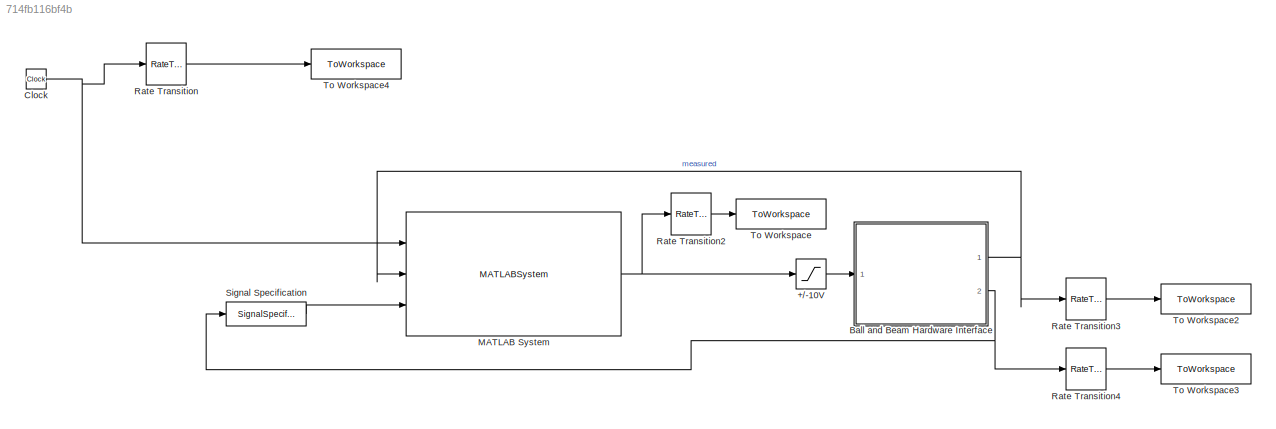
MODEL slx_714fb116bf4b
KIND model
CONFIG AbsTol = 1e-6
CONFIG EnableMultiTasking = on
CONFIG FixedStep = 0.002
CONFIG MaxStep = auto
CONFIG MinStep = auto
CONFIG RelTol = 1e-3
CONFIG SampleTimeConstraint = Unconstrained
CONFIG Solver = ode4
CONFIG SolverName = ode4
CONFIG StartTime = 0
CONFIG StopTime = 90
BLOCK [Saturate] +//-10V
  InputPortMap = u0
  LowerLimit = -10
  Ports = [1, 1]
  UpperLimit = 10
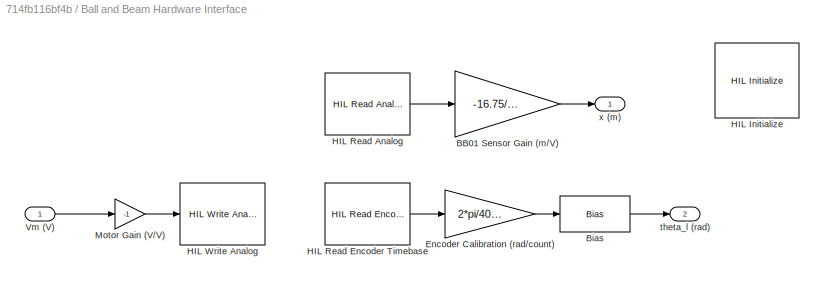
BLOCK [SubSystem] Ball and Beam Hardware Interface
  Ports = [1, 2]
  RequestExecContextInheritance = off
  Variant = off
BLOCK [Gain] Ball and Beam Hardware Interface/BB01 Sensor Gain (m//V)
  Gain = -16.75/10*0.0254
  OutDataTypeStr = Inherit: Inherit via internal rule
  ParamDataTypeStr = Inherit: Inherit via internal rule
  SaturateOnIntegerOverflow = off
BLOCK [Bias] Ball and Beam Hardware Interface/Bias
  Bias = -56*pi/180
  SaturateOnIntegerOverflow = off
BLOCK [Gain] Ball and Beam Hardware Interface/Encoder Calibration (rad//count)
  Gain = 2*pi/4096
BLOCK [Reference] Ball and Beam Hardware Interface/HIL Initialize  REF=quarc_library/Data Acquisition/Generic/Configuration/HIL Initialize
  AttributesFormatString = %<object_name> (%<board_type>-%<board_number>)
  Ports = []
  SourceBlock = quarc_library/Data Acquisition/Generic/Configuration/HIL Initialize
  SourceType = HIL Initialize
  UserDataPersistent = on
BLOCK [Reference] Ball and Beam Hardware Interface/HIL Read Analog  REF=quarc_library/Data Acquisition/Generic/Immediate I//O/HIL Read Analog
  AttributesFormatString = (%<object_name>)
  Ports = [0, 1]
  SourceBlock = quarc_library/Data Acquisition/Generic/Immediate I//O/HIL Read Analog
  SourceType = HIL Read Analog
  UserDataPersistent = on
BLOCK [Reference] Ball and Beam Hardware Interface/HIL Read Encoder Timebase  REF=quarc_library/Data Acquisition/Generic/Timebases/HIL Read Encoder
Timebase
  AttributesFormatString = (%<object_name>)
  Ports = [0, 1]
  SourceBlock = quarc_library/Data Acquisition/Generic/Timebases/HIL Read Encoder\nTimebase
  SourceType = HIL Read Encoder Timebase
  UserDataPersistent = on
BLOCK [Reference] Ball and Beam Hardware Interface/HIL Write Analog  REF=quarc_library/Data Acquisition/Generic/Immediate I//O/HIL Write Analog
  AttributesFormatString = (%<object_name>)
  Ports = [1]
  SourceBlock = quarc_library/Data Acquisition/Generic/Immediate I//O/HIL Write Analog
  SourceType = HIL Write Analog
  Tag = unassigned
  UserDataPersistent = on
BLOCK [Gain] Ball and Beam Hardware Interface/Motor Gain (V//V)
  Gain = -1
  OutDataTypeStr = Inherit: Inherit via internal rule
  ParamDataTypeStr = Inherit: Inherit via internal rule
  SaturateOnIntegerOverflow = off
BLOCK [Inport] Ball and Beam Hardware Interface/Vm (V)
  IconDisplay = Port number
BLOCK [Outport] Ball and Beam Hardware Interface/theta_l (rad)
  IconDisplay = Port number
  Port = 2
BLOCK [Outport] Ball and Beam Hardware Interface/x (m)
  IconDisplay = Port number
BLOCK [Clock] Clock
BLOCK [MATLABSystem] MATLAB System
  MaskDisplay = disp('studentControllerInterface');\nport_label('input',1,'t');\nport_label('input',2,'p_ball');\nport_label('input',3,'theta');\nport_label('output',1,'V_servo');
  MaskType = studentControllerInterface
  Ports = [3, 1]
  SimulateUsing = Code generation
  System = studentControllerInterface
BLOCK [RateTransition] Rate Transition
  OutPortSampleTimeOpt = Inherit
BLOCK [RateTransition] Rate Transition2
  OutPortSampleTimeOpt = Inherit
BLOCK [RateTransition] Rate Transition3
  OutPortSampleTimeOpt = Inherit
BLOCK [RateTransition] Rate Transition4
  OutPortSampleTimeOpt = Inherit
BLOCK [SignalSpecification] Signal Specification
  OutDataTypeStr = double
BLOCK [ToWorkspace] To Workspace
  FixptAsFi = on
  MaxDataPoints = inf
  Ports = [1]
  SampleTime = 0.01
  Save2DSignal = 2-D array (concatenate along first dimension)
  VariableName = us
BLOCK [ToWorkspace] To Workspace2
  FixptAsFi = on
  MaxDataPoints = inf
  Ports = [1]
  SampleTime = 0.01
  Save2DSignal = 2-D array (concatenate along first dimension)
  VariableName = ps
BLOCK [ToWorkspace] To Workspace3
  FixptAsFi = on
  MaxDataPoints = inf
  Ports = [1]
  SampleTime = 0.01
  Save2DSignal = 2-D array (concatenate along first dimension)
  VariableName = thetas
BLOCK [ToWorkspace] To Workspace4
  FixptAsFi = on
  MaxDataPoints = inf
  Ports = [1]
  SampleTime = 0.01
  Save2DSignal = 2-D array (concatenate along first dimension)
  VariableName = ts
LINE +//-10V:1 -> Ball and Beam Hardware Interface:1
LINE Ball and Beam Hardware Interface/BB01 Sensor Gain (m//V):1 -> Ball and Beam Hardware Interface/x (m):1
LINE Ball and Beam Hardware Interface/Bias:1 -> Ball and Beam Hardware Interface/theta_l (rad):1
LINE Ball and Beam Hardware Interface/Encoder Calibration (rad//count):1 -> Ball and Beam Hardware Interface/Bias:1
LINE Ball and Beam Hardware Interface/HIL Read Analog:1 -> Ball and Beam Hardware Interface/BB01 Sensor Gain (m//V):1
LINE Ball and Beam Hardware Interface/HIL Read Encoder Timebase:1 -> Ball and Beam Hardware Interface/Encoder Calibration (rad//count):1
LINE Ball and Beam Hardware Interface/Motor Gain (V//V):1 -> Ball and Beam Hardware Interface/HIL Write Analog:1
LINE Ball and Beam Hardware Interface/Vm (V):1 -> Ball and Beam Hardware Interface/Motor Gain (V//V):1
NET Ball and Beam Hardware Interface:1 -> MATLAB System:2, Rate Transition3:1
NET Ball and Beam Hardware Interface:2 -> Rate Transition4:1, Signal Specification:1
NET Clock:1 -> MATLAB System:1, Rate Transition:1
NET MATLAB System:1 -> +//-10V:1, Rate Transition2:1
LINE Rate Transition2:1 -> To Workspace:1
LINE Rate Transition3:1 -> To Workspace2:1
LINE Rate Transition4:1 -> To Workspace3:1
LINE Rate Transition:1 -> To Workspace4:1
LINE Signal Specification:1 -> MATLAB System:3
note: NET lines group one-source signal fan-out (src -> all destinations, sorted); 1:1 wires keep LINE
